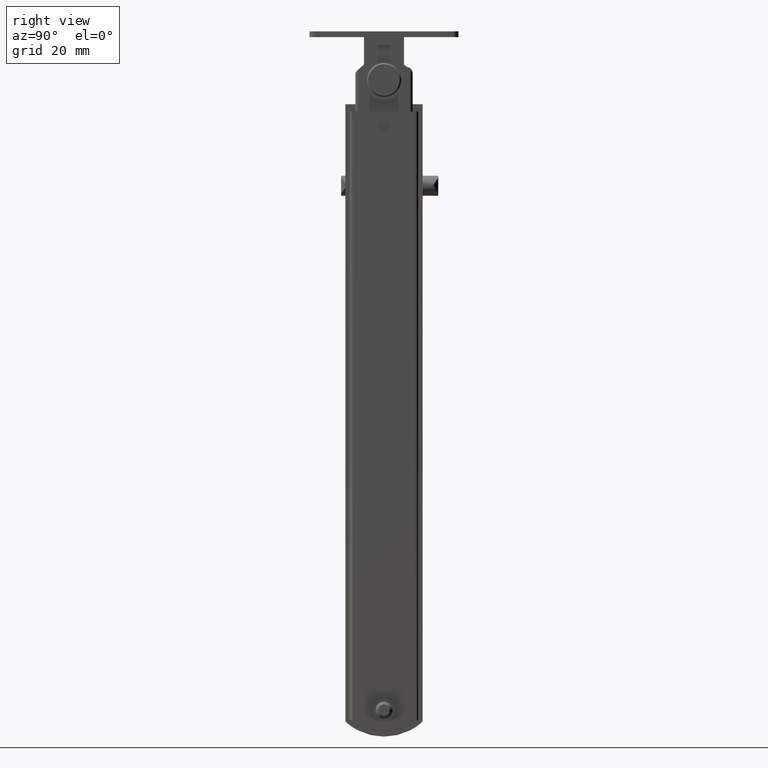
[diagram: clean part render]
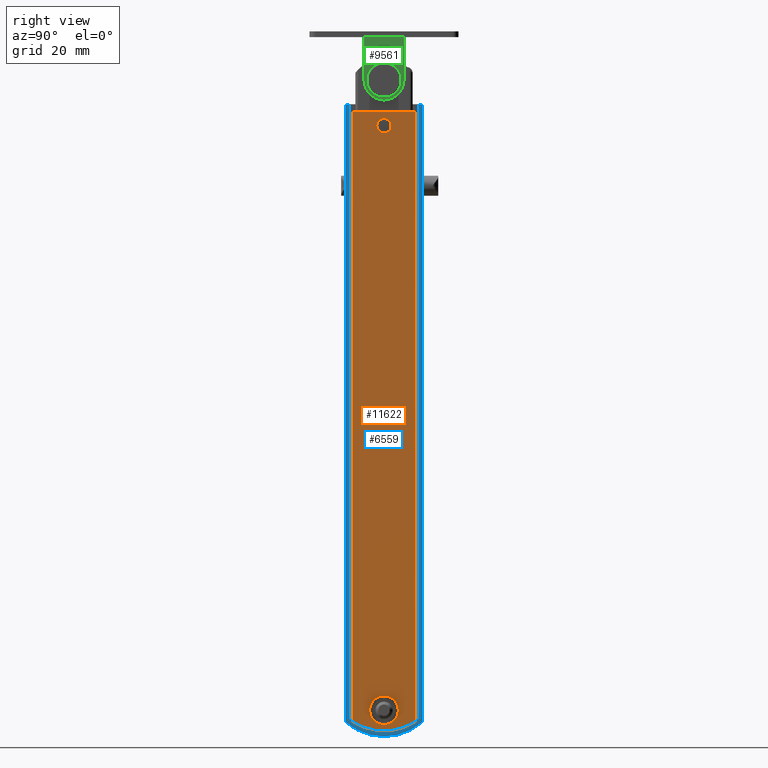
[diagram: same view with three faces highlighted in distinct colors, each labeled with its STEP entity id]
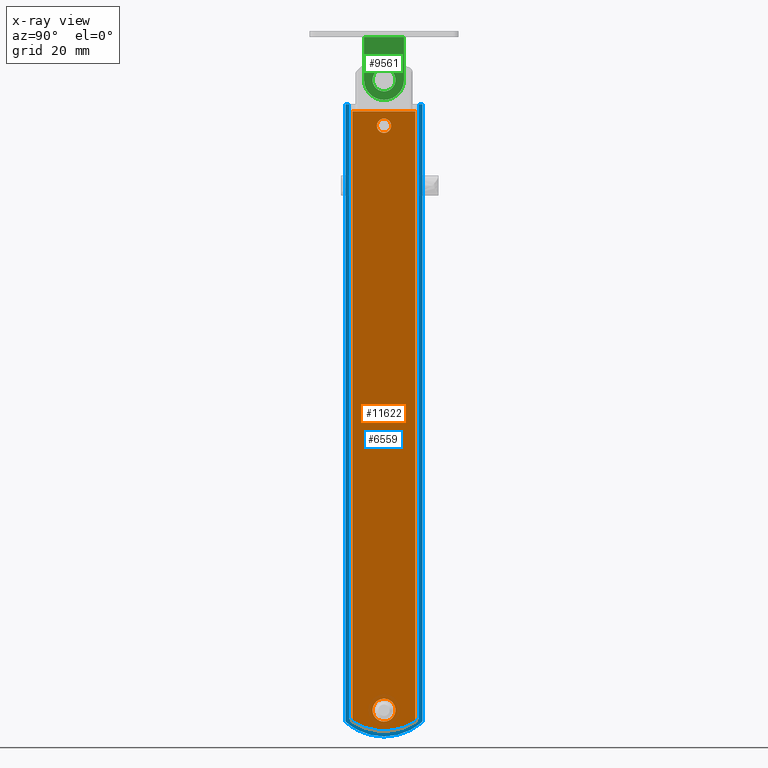
[diagram: x-ray of the same camera — body ghosted, the three highlighted faces saturated]
A machine part, right view with three faces highlighted in distinct colors.
The next image is the same camera in x-ray (body ghosted, the three faces saturated) — at least one of them is partly hidden behind the body in this view.
Their STEP definitions:

[orange] entity #11622 — the highlighted face is a freeform B-spline surface patch.
#10700=CARTESIAN_POINT('',(12.000000000000121,3.054223747431526,2.582968588759217));
#10701=VERTEX_POINT('',#10700);
#10707=CARTESIAN_POINT('',(12.000000000000121,0.0,4.0));
#10708=VERTEX_POINT('',#10707);
#10709=CARTESIAN_POINT('',(12.000000000000121,3.054223747431526,2.582968588759217));
#10710=CARTESIAN_POINT('',(12.000000000000110,2.797227095901918,2.887173241775408));
#10711=CARTESIAN_POINT('',(12.000000000000110,2.328973435319912,3.296936245620787));
#10712=CARTESIAN_POINT('',(12.000000000000130,1.302789720077379,3.842751822799811));
#10713=CARTESIAN_POINT('',(12.000000000000140,0.543154038361282,4.000695324337984));
#10714=CARTESIAN_POINT('',(12.000000000000121,0.0,4.0));
#10715=B_SPLINE_CURVE_WITH_KNOTS('',3,(#10709,#10710,#10711,#10712,#10713,#10714),.UNSPECIFIED.,.F.,.U.,(4,1,1,4),(0.000000164945613,1.194644746573973,1.846228094302886,3.475314135071406),.UNSPECIFIED.);
#10716=EDGE_CURVE('',#10701,#10708,#10715,.T.);
#10718=CARTESIAN_POINT('',(12.000000000000121,-3.999999999997143,-0.000004781312837));
#10719=VERTEX_POINT('',#10718);
#10720=CARTESIAN_POINT('',(12.000000000000121,0.0,4.0));
#10721=CARTESIAN_POINT('',(12.000000000000140,-0.490928007489591,4.000424968098961));
#10722=CARTESIAN_POINT('',(12.000000000000091,-1.341500686006327,3.841342912902102));
#10723=CARTESIAN_POINT('',(12.000000000000160,-2.353979826614640,3.283880235904535));
#10724=CARTESIAN_POINT('',(12.000000000000099,-3.174450999487624,2.522154175638686));
#10725=CARTESIAN_POINT('',(12.000000000000130,-3.823060001982060,1.439677722314948));
#10726=CARTESIAN_POINT('',(12.000000000000110,-4.000416719836876,0.490923298547355));
#10727=CARTESIAN_POINT('',(12.000000000000121,-3.999999999997143,-0.000004781312837));
#10728=B_SPLINE_CURVE_WITH_KNOTS('',3,(#10720,#10721,#10722,#10723,#10724,#10725,#10726,#10727),.UNSPECIFIED.,.F.,.U.,(4,1,1,1,1,4),(0.000000488394448,1.472661813960707,2.552670189058275,3.436135839027807,4.810690872210327,6.283345672275717),.UNSPECIFIED.);
#10729=EDGE_CURVE('',#10708,#10719,#10728,.T.);
#10731=CARTESIAN_POINT('',(12.000000000000121,0.0,-4.0));
#10732=VERTEX_POINT('',#10731);
#10733=CARTESIAN_POINT('',(12.000000000000121,-3.999999999997143,-0.000004781312837));
#10734=CARTESIAN_POINT('',(12.000000000000110,-4.000443056156374,-0.490941001910352));
#10735=CARTESIAN_POINT('',(12.000000000000121,-3.841291980970330,-1.341471361128876));
#10736=CARTESIAN_POINT('',(12.000000000000130,-3.204429647679850,-2.498859515820879));
#10737=CARTESIAN_POINT('',(12.000000000000121,-2.434847076821126,-3.231623177498820));
#10738=CARTESIAN_POINT('',(12.000000000000121,-1.341163055925452,-3.833325707366715));
#10739=CARTESIAN_POINT('',(12.000000000000149,-0.556514321468084,-4.000793763420298));
#10740=CARTESIAN_POINT('',(12.000000000000121,0.0,-4.0));
#10741=B_SPLINE_CURVE_WITH_KNOTS('',3,(#10733,#10734,#10735,#10736,#10737,#10738,#10739,#10740),.UNSPECIFIED.,.F.,.U.,(4,1,1,1,1,4),(0.000000494935948,1.472660555516129,2.552668006919940,3.927076196278049,4.614324032713522,6.283340282487296),.UNSPECIFIED.);
#10742=EDGE_CURVE('',#10719,#10732,#10741,.T.);
#10744=CARTESIAN_POINT('',(12.000000000000121,2.753417189138168,-2.901496895231373));
#10745=VERTEX_POINT('',#10744);
#10746=CARTESIAN_POINT('',(12.000000000000121,0.0,-4.0));
#10747=CARTESIAN_POINT('',(12.000000000000121,0.474568084769162,-4.000339622426640));
#10748=CARTESIAN_POINT('',(12.000000000000149,1.486556589358226,-3.817664364304001));
#10749=CARTESIAN_POINT('',(12.000000000000099,2.363704608982985,-3.272200122820786));
#10750=CARTESIAN_POINT('',(12.000000000000121,2.753417189138168,-2.901496895231373));
#10751=B_SPLINE_CURVE_WITH_KNOTS('',3,(#10746,#10747,#10748,#10749,#10750),.UNSPECIFIED.,.F.,.U.,(4,1,4),(0.000000113875855,1.423597997626385,3.036943254687630),.UNSPECIFIED.);
#10752=EDGE_CURVE('',#10732,#10745,#10751,.T.);
#10832=CARTESIAN_POINT('',(12.000000000000121,3.999999999997143,0.000004781312798));
#10833=VERTEX_POINT('',#10832);
#10834=CARTESIAN_POINT('',(12.000000000000121,2.753417189138168,-2.901496895231373));
#10835=CARTESIAN_POINT('',(12.000000000000171,2.974214308855560,-2.692033923996756));
#10836=CARTESIAN_POINT('',(12.000000000000080,3.411440147456695,-2.170255157625982));
#10837=CARTESIAN_POINT('',(12.000000000000080,3.880644353036686,-1.183470305521295));
#10838=CARTESIAN_POINT('',(12.000000000000130,4.000191153738079,-0.405804387646139));
#10839=CARTESIAN_POINT('',(12.000000000000121,3.999999999997143,0.000004781312798));
#10840=B_SPLINE_CURVE_WITH_KNOTS('',3,(#10834,#10835,#10836,#10837,#10838,#10839),.UNSPECIFIED.,.F.,.U.,(4,1,1,4),(0.000000158783134,0.913055590983658,2.029001722103571,3.246404090612490),.UNSPECIFIED.);
#10841=EDGE_CURVE('',#10745,#10833,#10840,.T.);
#10843=CARTESIAN_POINT('',(12.000000000000121,3.999999999997143,0.000004781312798));
#10844=CARTESIAN_POINT('',(12.000000000000130,4.000100734943780,0.380247081567482));
#10845=CARTESIAN_POINT('',(12.000000000000130,3.865638586917411,1.316244394184633));
#10846=CARTESIAN_POINT('',(12.000000000000110,3.413728334702718,2.158985232800402));
#10847=CARTESIAN_POINT('',(12.000000000000121,3.054223747431526,2.582968588759217));
#10848=B_SPLINE_CURVE_WITH_KNOTS('',3,(#10843,#10844,#10845,#10846,#10847),.UNSPECIFIED.,.F.,.U.,(4,1,4),(0.000000100386850,1.140768908659507,2.808030316062090),.UNSPECIFIED.);
#10849=EDGE_CURVE('',#10833,#10701,#10848,.T.);
#10893=CARTESIAN_POINT('',(12.000000000000121,-1.614354749777848,206.365234400114500));
#10894=VERTEX_POINT('',#10893);
#10900=CARTESIAN_POINT('',(12.000000000000121,-2.500000000000000,204.456345000000000));
#10901=VERTEX_POINT('',#10900);
#10902=CARTESIAN_POINT('',(12.000000000000121,-1.614354749777848,206.365234400114500));
#10903=CARTESIAN_POINT('',(12.000000000000140,-1.873792210486293,206.146341024666900));
#10904=CARTESIAN_POINT('',(12.000000000000091,-2.329368264540322,205.564374182527810));
#10905=CARTESIAN_POINT('',(12.000000000000140,-2.500636715097125,204.841071736535610));
#10906=CARTESIAN_POINT('',(12.000000000000121,-2.500000000000000,204.456345000000000));
#10907=B_SPLINE_CURVE_WITH_KNOTS('',3,(#10902,#10903,#10904,#10905,#10906),.UNSPECIFIED.,.F.,.U.,(4,1,4),(0.000000181425225,1.018194678514850,2.172071201003939),.UNSPECIFIED.);
#10908=EDGE_CURVE('',#10894,#10901,#10907,.T.);
#10910=CARTESIAN_POINT('',(12.000000000000121,0.0,201.956345000000000));
#10911=VERTEX_POINT('',#10910);
#10912=CARTESIAN_POINT('',(12.000000000000121,-2.500000000000000,204.456345000000000));
#10913=CARTESIAN_POINT('',(12.000000000000130,-2.500299696164800,204.149490425098410));
#10914=CARTESIAN_POINT('',(12.000000000000121,-2.416050506819139,203.699771766388410));
#10915=CARTESIAN_POINT('',(12.000000000000110,-2.109945608797723,203.072462023508390));
#10916=CARTESIAN_POINT('',(12.000000000000140,-1.768943286334725,202.656974082360700));
#10917=CARTESIAN_POINT('',(12.000000000000160,-1.278791712956244,202.284032989083810));
#10918=CARTESIAN_POINT('',(11.999999999999940,-0.715819672084915,202.026177594381610));
#10919=CARTESIAN_POINT('',(12.000000000000220,-0.245443876642096,201.956245405539110));
#10920=CARTESIAN_POINT('',(12.000000000000121,0.0,201.956345000000000));
#10921=B_SPLINE_CURVE_WITH_KNOTS('',3,(#10912,#10913,#10914,#10915,#10916,#10917,#10918,#10919,#10920),.UNSPECIFIED.,.F.,.U.,(4,1,1,1,1,1,4),(0.000000617949391,0.920408052182494,1.349944410758703,2.086207496016767,2.515747926762687,3.190773235271858,3.927089360947993),.UNSPECIFIED.);
#10922=EDGE_CURVE('',#10901,#10911,#10921,.T.);
#10924=CARTESIAN_POINT('',(12.000000000000121,2.500000000000000,204.456345000000000));
#10925=VERTEX_POINT('',#10924);
#10926=CARTESIAN_POINT('',(12.000000000000121,0.0,201.956345000000000));
#10927=CARTESIAN_POINT('',(12.000000000000110,0.368261763218683,201.955778685498500));
#10928=CARTESIAN_POINT('',(12.000000000000110,1.001819350485469,202.099059352608800));
#10929=CARTESIAN_POINT('',(12.000000000000140,1.719215865704624,202.591328999252910));
#10930=CARTESIAN_POINT('',(12.000000000000091,2.118915614935050,203.090961344275310));
#10931=CARTESIAN_POINT('',(12.000000000000160,2.416089084292320,203.699759148063410));
#10932=CARTESIAN_POINT('',(12.000000000000091,2.500261848616955,204.149498407010900));
#10933=CARTESIAN_POINT('',(12.000000000000121,2.500000000000000,204.456345000000000));
#10934=B_SPLINE_CURVE_WITH_KNOTS('',3,(#10926,#10927,#10928,#10929,#10930,#10931,#10932,#10933),.UNSPECIFIED.,.F.,.U.,(4,1,1,1,1,4),(0.000000617948949,1.104508061015558,1.902273739689414,2.577148151264387,3.006681187969455,3.927089360947799),.UNSPECIFIED.);
#10935=EDGE_CURVE('',#10911,#10925,#10934,.T.);
#10937=CARTESIAN_POINT('',(12.000000000000121,1.813435545161313,206.177231842167490));
#10938=VERTEX_POINT('',#10937);
#10939=CARTESIAN_POINT('',(12.000000000000121,2.500000000000000,204.456345000000000));
#10940=CARTESIAN_POINT('',(12.000000000000121,2.500400717762624,204.792500260332590));
#10941=CARTESIAN_POINT('',(12.000000000000121,2.370323327101627,205.424834281801110));
#10942=CARTESIAN_POINT('',(12.000000000000121,2.017764819955827,205.962221764752800));
#10943=CARTESIAN_POINT('',(12.000000000000121,1.813435545161313,206.177231842167490));
#10944=B_SPLINE_CURVE_WITH_KNOTS('',3,(#10939,#10940,#10941,#10942,#10943),.UNSPECIFIED.,.F.,.U.,(4,1,4),(0.000000148749935,1.008315055425817,1.898090624504165),.UNSPECIFIED.);
#10945=EDGE_CURVE('',#10925,#10938,#10944,.T.);
#11025=CARTESIAN_POINT('',(12.000000000000121,0.0,206.956345000000000));
#11026=VERTEX_POINT('',#11025);
#11027=CARTESIAN_POINT('',(12.000000000000121,1.813435545161313,206.177231842167490));
#11028=CARTESIAN_POINT('',(12.000000000000121,1.595375203691673,206.407423136562190));
#11029=CARTESIAN_POINT('',(12.000000000000121,1.035185263856093,206.807820979745090));
#11030=CARTESIAN_POINT('',(12.000000000000130,0.359362046168541,206.956873052276590));
#11031=CARTESIAN_POINT('',(12.000000000000121,0.0,206.956345000000000));
#11032=B_SPLINE_CURVE_WITH_KNOTS('',3,(#11027,#11028,#11029,#11030,#11031),.UNSPECIFIED.,.F.,.U.,(4,1,4),(0.000000164695610,0.951136653777378,2.028999063728803),.UNSPECIFIED.);
#11033=EDGE_CURVE('',#10938,#11026,#11032,.T.);
#11035=CARTESIAN_POINT('',(12.000000000000121,0.0,206.956345000000000));
#11036=CARTESIAN_POINT('',(12.000000000000099,-0.329114273810028,206.956681807406200));
#11037=CARTESIAN_POINT('',(12.000000000000160,-0.913778560692383,206.839062687326110));
#11038=CARTESIAN_POINT('',(12.000000000000121,-1.419000273031375,206.530595402741600));
#11039=CARTESIAN_POINT('',(12.000000000000121,-1.614354749777848,206.365234400114500));
#11040=B_SPLINE_CURVE_WITH_KNOTS('',3,(#11035,#11036,#11037,#11038,#11039),.UNSPECIFIED.,.F.,.U.,(4,1,4),(0.000000100614913,0.987186602288595,1.755021490855586),.UNSPECIFIED.);
#11041=EDGE_CURVE('',#11026,#10894,#11040,.T.);
#11183=CARTESIAN_POINT('',(12.000000000000121,11.0,-3.946945088489875));
#11184=VERTEX_POINT('',#11183);
#11216=CARTESIAN_POINT('',(12.000000000000121,-11.0,-3.946945088489875));
#11217=VERTEX_POINT('',#11216);
#11218=CARTESIAN_POINT('',(12.000000000000121,-11.0,-3.946945088489875));
#11219=CARTESIAN_POINT('',(12.000000000000080,-9.480355297349959,-4.948390568995393));
#11220=CARTESIAN_POINT('',(12.000000000000220,-6.386374003239906,-6.426212597776745));
#11221=CARTESIAN_POINT('',(12.000000000000080,-2.068044931017079,-7.261613497096345));
#11222=CARTESIAN_POINT('',(12.000000000000099,1.338116427170954,-7.261203528266003));
#11223=CARTESIAN_POINT('',(12.000000000000179,4.349174841307921,-6.847776383826534));
#11224=CARTESIAN_POINT('',(11.999999999999959,7.616807917601216,-5.868503722386145));
#11225=CARTESIAN_POINT('',(12.000000000000270,9.885487092169973,-4.681100307073877));
#11226=CARTESIAN_POINT('',(12.000000000000121,11.0,-3.946945088489875));
#11227=B_SPLINE_CURVE_WITH_KNOTS('',3,(#11218,#11219,#11220,#11221,#11222,#11223,#11224,#11225,#11226),.UNSPECIFIED.,.F.,.U.,(4,1,1,1,1,1,4),(0.000000132567529,5.459683794729269,10.191416567626330,13.103222335913239,15.651067559048540,19.290907354462082,23.294649878391240),.UNSPECIFIED.);
#11228=EDGE_CURVE('',#11217,#11184,#11227,.T.);
#11428=CARTESIAN_POINT('',(12.0,-11.0,209.456345000000000));
#11429=VERTEX_POINT('',#11428);
#11440=CARTESIAN_POINT('',(12.0,11.0,209.456345000000000));
#11441=VERTEX_POINT('',#11440);
#11442=CARTESIAN_POINT('',(12.0,11.0,209.456345000000000));
#11443=CARTESIAN_POINT('',(12.0,-11.0,209.456345000000000));
#11444=QUASI_UNIFORM_CURVE('',1,(#11442,#11443),.UNSPECIFIED.,.F.,.U.);
#11445=EDGE_CURVE('',#11441,#11429,#11444,.T.);
#11577=CARTESIAN_POINT('',(12.000000000000121,-11.0,-3.946945088489875));
#11578=CARTESIAN_POINT('',(12.0,-11.0,209.456345000000000));
#11579=QUASI_UNIFORM_CURVE('',1,(#11577,#11578),.UNSPECIFIED.,.F.,.U.);
#11580=EDGE_CURVE('',#11217,#11429,#11579,.T.);
#11591=CARTESIAN_POINT('',(12.0,12.098899957359730,-18.067875422654470));
#11592=CARTESIAN_POINT('',(12.0,-12.098900547445711,-18.067875422654470));
#11593=CARTESIAN_POINT('',(12.0,12.098899957359730,220.280518048981890));
#11594=CARTESIAN_POINT('',(12.0,-12.098900547445711,220.280518048981890));
#11595=B_SPLINE_SURFACE_WITH_KNOTS('',1,1,((#11591,#11593),(#11592,#11594)),.UNSPECIFIED.,.F.,.F.,.U.,(2,2),(2,2),(0.0,24.197800504805439),(0.0,238.348393471636400),.UNSPECIFIED.);
#11596=ORIENTED_EDGE('',*,*,#11228,.T.);
#11597=CARTESIAN_POINT('',(12.000000000000121,11.0,-3.946945088489875));
#11598=CARTESIAN_POINT('',(12.0,11.0,209.456345000000000));
#11599=QUASI_UNIFORM_CURVE('',1,(#11597,#11598),.UNSPECIFIED.,.F.,.U.);
#11600=EDGE_CURVE('',#11184,#11441,#11599,.T.);
#11601=ORIENTED_EDGE('',*,*,#11600,.T.);
#11602=ORIENTED_EDGE('',*,*,#11445,.T.);
#11603=ORIENTED_EDGE('',*,*,#11580,.F.);
#11604=EDGE_LOOP('',(#11596,#11601,#11602,#11603));
#11605=FACE_OUTER_BOUND('',#11604,.T.);
#11606=ORIENTED_EDGE('',*,*,#10922,.F.);
#11607=ORIENTED_EDGE('',*,*,#10908,.F.);
#11608=ORIENTED_EDGE('',*,*,#11041,.F.);
#11609=ORIENTED_EDGE('',*,*,#11033,.F.);
#11610=ORIENTED_EDGE('',*,*,#10945,.F.);
#11611=ORIENTED_EDGE('',*,*,#10935,.F.);
#11612=EDGE_LOOP('',(#11606,#11607,#11608,#11609,#11610,#11611));
#11613=FACE_BOUND('',#11612,.T.);
#11614=ORIENTED_EDGE('',*,*,#10729,.F.);
#11615=ORIENTED_EDGE('',*,*,#10716,.F.);
#11616=ORIENTED_EDGE('',*,*,#10849,.F.);
#11617=ORIENTED_EDGE('',*,*,#10841,.F.);
#11618=ORIENTED_EDGE('',*,*,#10752,.F.);
#11619=ORIENTED_EDGE('',*,*,#10742,.F.);
#11620=EDGE_LOOP('',(#11614,#11615,#11616,#11617,#11618,#11619));
#11621=FACE_BOUND('',#11620,.T.);
#11622=ADVANCED_FACE('',(#11605,#11613,#11621),#11595,.F.);

[blue] entity #6559 — the highlighted face is a freeform B-spline surface patch.
#5511=CARTESIAN_POINT('',(11.0,-13.500000000000000,-3.552740021253995));
#5512=VERTEX_POINT('',#5511);
#5513=CARTESIAN_POINT('',(11.000000000000121,-13.157894736842200,-4.305849917109476));
#5514=VERTEX_POINT('',#5513);
#5515=CARTESIAN_POINT('',(11.0,-13.500000000000000,-3.552740021253995));
#5516=CARTESIAN_POINT('',(11.000000000000020,-13.500097792026191,-3.677111893867539));
#5517=CARTESIAN_POINT('',(11.000000000000121,-13.446280073769330,-3.961319998446768));
#5518=CARTESIAN_POINT('',(11.000000000000110,-13.278574166652829,-4.200850612165257));
#5519=CARTESIAN_POINT('',(11.000000000000121,-13.157894736842200,-4.305849917109476));
#5520=B_SPLINE_CURVE_WITH_KNOTS('',3,(#5515,#5516,#5517,#5518,#5519),.UNSPECIFIED.,.F.,.U.,(4,1,4),(0.000000255747180,0.373151193881027,0.852877233541539),.UNSPECIFIED.);
#5521=EDGE_CURVE('',#5512,#5514,#5520,.T.);
#5806=CARTESIAN_POINT('',(11.000000000000121,13.157894736842140,-4.305849917109526));
#5807=VERTEX_POINT('',#5806);
#5808=CARTESIAN_POINT('',(11.0,13.500000000000000,-3.552740021254045));
#5809=VERTEX_POINT('',#5808);
#5810=CARTESIAN_POINT('',(11.000000000000121,13.157894736842140,-4.305849917109526));
#5811=CARTESIAN_POINT('',(11.000000000000121,13.251629310540910,-4.224097349312967));
#5812=CARTESIAN_POINT('',(11.000000000000110,13.430248773533600,-3.996598539181537));
#5813=CARTESIAN_POINT('',(11.000000000000041,13.500323019898600,-3.712695751793032));
#5814=CARTESIAN_POINT('',(11.0,13.500000000000000,-3.552740021254045));
#5815=B_SPLINE_CURVE_WITH_KNOTS('',3,(#5810,#5811,#5812,#5813,#5814),.UNSPECIFIED.,.F.,.U.,(4,1,4),(0.000000255747170,0.373151193881032,0.852877233541573),.UNSPECIFIED.);
#5816=EDGE_CURVE('',#5807,#5809,#5815,.T.);
#6398=CARTESIAN_POINT('',(11.0,-12.200011999999900,211.999985000000010));
#6399=VERTEX_POINT('',#6398);
#6400=CARTESIAN_POINT('',(11.000000000000121,-12.200011999999900,-3.091671030776525));
#6401=VERTEX_POINT('',#6400);
#6402=CARTESIAN_POINT('',(11.0,-12.200011999999900,211.999985000000010));
#6403=CARTESIAN_POINT('',(11.000000000000121,-12.200011999999900,-3.091671030776525));
#6404=QUASI_UNIFORM_CURVE('',1,(#6402,#6403),.UNSPECIFIED.,.F.,.U.);
#6405=EDGE_CURVE('',#6399,#6401,#6404,.T.);
#6434=CARTESIAN_POINT('',(11.000000000000121,12.199982000000100,-3.091694125122900));
#6435=VERTEX_POINT('',#6434);
#6436=CARTESIAN_POINT('',(11.000000000000121,12.199982000000100,211.999985000000010));
#6437=VERTEX_POINT('',#6436);
#6438=CARTESIAN_POINT('',(11.000000000000121,12.199982000000100,-3.091694125122900));
#6439=CARTESIAN_POINT('',(11.000000000000121,12.199982000000100,211.999985000000010));
#6440=QUASI_UNIFORM_CURVE('',1,(#6438,#6439),.UNSPECIFIED.,.F.,.U.);
#6441=EDGE_CURVE('',#6435,#6437,#6440,.T.);
#6479=CARTESIAN_POINT('',(11.000000000000121,-12.200011999999900,-3.091671030776525));
#6480=CARTESIAN_POINT('',(11.000000000000160,-10.792366903748510,-4.176053259923665));
#6481=CARTESIAN_POINT('',(11.000000000000110,-8.163429381294936,-5.689870757424094));
#6482=CARTESIAN_POINT('',(11.000000000000091,-4.160509649671401,-6.916127240030898));
#6483=CARTESIAN_POINT('',(11.000000000000171,-0.345597692991332,-7.368009431767862));
#6484=CARTESIAN_POINT('',(11.000000000000041,3.492249825616880,-7.072432347194206));
#6485=CARTESIAN_POINT('',(11.000000000000201,7.915578099958315,-5.815874696998382));
#6486=CARTESIAN_POINT('',(11.000000000000069,10.684124429532410,-4.259639519956491));
#6487=CARTESIAN_POINT('',(11.000000000000121,12.199982000000100,-3.091694125122900));
#6488=B_SPLINE_CURVE_WITH_KNOTS('',3,(#6479,#6480,#6481,#6482,#6483,#6484,#6485,#6486,#6487),.UNSPECIFIED.,.F.,.U.,(4,1,1,1,1,1,4),(0.000000169549853,5.330498117942291,9.020882224034459,12.506242971666969,16.811581504330210,20.501986241371380,26.242530960692040),.UNSPECIFIED.);
#6489=EDGE_CURVE('',#6401,#6435,#6488,.T.);
#6509=CARTESIAN_POINT('',(11.0,14.848649947668759,223.051100287148610));
#6510=CARTESIAN_POINT('',(11.0,-14.848650671865190,223.051100287148610));
#6511=CARTESIAN_POINT('',(11.0,14.848649947668759,-20.294694098474839));
#6512=CARTESIAN_POINT('',(11.0,-14.848650671865190,-20.294694098474839));
#6513=B_SPLINE_SURFACE_WITH_KNOTS('',1,1,((#6509,#6511),(#6510,#6512)),.UNSPECIFIED.,.F.,.F.,.U.,(2,2),(2,2),(0.0,29.697300619533959),(0.0,243.345794385623410),.UNSPECIFIED.);
#6514=CARTESIAN_POINT('',(11.000000000000121,-13.500000000000000,211.999985000000010));
#6515=VERTEX_POINT('',#6514);
#6516=CARTESIAN_POINT('',(11.0,-13.500000000000000,-3.552740021253995));
#6517=CARTESIAN_POINT('',(11.000000000000121,-13.500000000000000,211.999985000000010));
#6518=QUASI_UNIFORM_CURVE('',1,(#6516,#6517),.UNSPECIFIED.,.F.,.U.);
#6519=EDGE_CURVE('',#5512,#6515,#6518,.T.);
#6520=ORIENTED_EDGE('',*,*,#6519,.F.);
#6521=ORIENTED_EDGE('',*,*,#5521,.T.);
#6522=CARTESIAN_POINT('',(11.000000000000121,13.157894736842140,-4.305849917109526));
#6523=CARTESIAN_POINT('',(11.000000000000121,12.200430307308951,-5.142483929019331));
#6524=CARTESIAN_POINT('',(11.000000000000121,10.430295552721059,-6.412957468060539));
#6525=CARTESIAN_POINT('',(11.000000000000130,7.676243699577665,-7.777397093276835));
#6526=CARTESIAN_POINT('',(11.000000000000099,4.906026416438772,-8.711921393728556));
#6527=CARTESIAN_POINT('',(11.000000000000179,1.579346763890030,-9.296465967029713));
#6528=CARTESIAN_POINT('',(11.000000000000069,-2.254354085118291,-9.253491212405688));
#6529=CARTESIAN_POINT('',(11.000000000000171,-6.222039119462917,-8.394756689999834));
#6530=CARTESIAN_POINT('',(10.999999999999931,-9.936715267212525,-6.757451393566690));
#6531=CARTESIAN_POINT('',(11.000000000000350,-12.144107988673699,-5.191690539258070));
#6532=CARTESIAN_POINT('',(11.000000000000121,-13.157894736842200,-4.305849917109476));
#6533=B_SPLINE_CURVE_WITH_KNOTS('',3,(#6522,#6523,#6524,#6525,#6526,#6527,#6528,#6529,#6530,#6531,#6532),.UNSPECIFIED.,.F.,.U.,(4,1,1,1,1,1,1,1,4),(0.000000193022686,3.814453291165041,6.507081543909557,9.199707909342813,12.565451030668310,16.604230479125231,20.643179127831541,24.682107557488450,28.720946994341919),.UNSPECIFIED.);
#6534=EDGE_CURVE('',#5807,#5514,#6533,.T.);
#6535=ORIENTED_EDGE('',*,*,#6534,.F.);
#6536=ORIENTED_EDGE('',*,*,#5816,.T.);
#6537=CARTESIAN_POINT('',(11.000000000000121,13.500000000000000,211.999985000000010));
#6538=VERTEX_POINT('',#6537);
#6539=CARTESIAN_POINT('',(11.000000000000121,13.500000000000000,211.999985000000010));
#6540=CARTESIAN_POINT('',(11.0,13.500000000000000,-3.552740021254045));
#6541=QUASI_UNIFORM_CURVE('',1,(#6539,#6540),.UNSPECIFIED.,.F.,.U.);
#6542=EDGE_CURVE('',#6538,#5809,#6541,.T.);
#6543=ORIENTED_EDGE('',*,*,#6542,.F.);
#6544=CARTESIAN_POINT('',(11.000000000000121,12.199982000000100,211.999985000000010));
#6545=CARTESIAN_POINT('',(11.000000000000121,13.500000000000000,211.999985000000010));
#6546=QUASI_UNIFORM_CURVE('',1,(#6544,#6545),.UNSPECIFIED.,.F.,.U.);
#6547=EDGE_CURVE('',#6437,#6538,#6546,.T.);
#6548=ORIENTED_EDGE('',*,*,#6547,.F.);
#6549=ORIENTED_EDGE('',*,*,#6441,.F.);
#6550=ORIENTED_EDGE('',*,*,#6489,.F.);
#6551=ORIENTED_EDGE('',*,*,#6405,.F.);
#6552=CARTESIAN_POINT('',(11.000000000000121,-13.500000000000000,211.999985000000010));
#6553=CARTESIAN_POINT('',(11.0,-12.200011999999900,211.999985000000010));
#6554=QUASI_UNIFORM_CURVE('',1,(#6552,#6553),.UNSPECIFIED.,.F.,.U.);
#6555=EDGE_CURVE('',#6515,#6399,#6554,.T.);
#6556=ORIENTED_EDGE('',*,*,#6555,.F.);
#6557=EDGE_LOOP('',(#6520,#6521,#6535,#6536,#6543,#6548,#6549,#6550,#6551,#6556));
#6558=FACE_OUTER_BOUND('',#6557,.T.);
#6559=ADVANCED_FACE('',(#6558),#6513,.T.);

[green] entity #9561 — the highlighted face is a freeform B-spline surface patch.
#8449=CARTESIAN_POINT('',(12.500000000000000,4.263256E-014,216.499985000000010));
#8450=VERTEX_POINT('',#8449);
#8451=CARTESIAN_POINT('',(12.499999999867750,-2.866602950803972,217.710257779760300));
#8452=VERTEX_POINT('',#8451);
#8453=CARTESIAN_POINT('',(12.500000000000000,4.263256E-014,216.499985000000010));
#8454=CARTESIAN_POINT('',(12.499999999980050,-0.432827709507060,216.499725734135890));
#8455=CARTESIAN_POINT('',(12.499999999946230,-1.165056351226065,216.620062870602790));
#8456=CARTESIAN_POINT('',(12.499999999901460,-2.136377213589299,217.073794558761700));
#8457=CARTESIAN_POINT('',(12.499999999878440,-2.634470901436978,217.471613591343810));
#8458=CARTESIAN_POINT('',(12.499999999867750,-2.866602950803972,217.710257779760300));
#8459=B_SPLINE_CURVE_WITH_KNOTS('',3,(#8453,#8454,#8455,#8456,#8457,#8458),.UNSPECIFIED.,.F.,.U.,(4,1,1,4),(0.000000146786438,1.298415215863936,2.197260945354799,3.196036213459804),.UNSPECIFIED.);
#8460=EDGE_CURVE('',#8450,#8452,#8459,.T.);
#8462=CARTESIAN_POINT('',(12.500000000000000,3.999999999997185,220.499980218687200));
#8463=VERTEX_POINT('',#8462);
#8464=CARTESIAN_POINT('',(12.500000000000000,3.999999999997185,220.499980218687200));
#8465=CARTESIAN_POINT('',(12.500000000000011,4.000625161851998,219.943559226042710));
#8466=CARTESIAN_POINT('',(12.500000000000020,3.798761605473938,218.995066521878410));
#8467=CARTESIAN_POINT('',(12.499999999999970,3.125999218412407,217.933113837489000));
#8468=CARTESIAN_POINT('',(12.500000000000041,2.426347919293701,217.283377016261710));
#8469=CARTESIAN_POINT('',(12.499999999999989,1.439279521815492,216.691455623721400));
#8470=CARTESIAN_POINT('',(12.500000000000000,0.589261967587173,216.499024590228690));
#8471=CARTESIAN_POINT('',(12.500000000000000,4.263256E-014,216.499985000000010));
#8472=B_SPLINE_CURVE_WITH_KNOTS('',3,(#8464,#8465,#8466,#8467,#8468,#8469,#8470,#8471),.UNSPECIFIED.,.F.,.U.,(4,1,1,1,1,4),(0.000000494907352,1.669021496656500,2.847211303064096,3.730667726733395,4.516137235136488,6.283340282487501),.UNSPECIFIED.);
#8473=EDGE_CURVE('',#8463,#8450,#8472,.T.);
#8475=CARTESIAN_POINT('',(12.500000000000000,4.263256E-014,224.499985000000010));
#8476=VERTEX_POINT('',#8475);
#8477=CARTESIAN_POINT('',(12.500000000000000,4.263256E-014,224.499985000000010));
#8478=CARTESIAN_POINT('',(12.500000000000000,0.425451166074565,224.500205203794000));
#8479=CARTESIAN_POINT('',(12.500000000000000,1.112510913380812,224.389264443769890));
#8480=CARTESIAN_POINT('',(12.500000000000011,2.044427513998422,223.976097125394600));
#8481=CARTESIAN_POINT('',(12.500000000000020,2.918707173884032,223.328191088580100));
#8482=CARTESIAN_POINT('',(12.499999999999950,3.757039686379635,222.168396040629800));
#8483=CARTESIAN_POINT('',(12.500000000000030,4.000881587121273,221.089140550290010));
#8484=CARTESIAN_POINT('',(12.500000000000000,3.999999999997185,220.499980218687200));
#8485=B_SPLINE_CURVE_WITH_KNOTS('',3,(#8477,#8478,#8479,#8480,#8481,#8482,#8483,#8484),.UNSPECIFIED.,.F.,.U.,(4,1,1,1,1,4),(0.000000488382850,1.276288244605668,2.061757085923953,3.043560162477350,4.516141112756670,6.283345672275696),.UNSPECIFIED.);
#8486=EDGE_CURVE('',#8476,#8463,#8485,.T.);
#8488=CARTESIAN_POINT('',(12.500000000130090,-2.949110140296961,223.202346727569390));
#8489=VERTEX_POINT('',#8488);
#8490=CARTESIAN_POINT('',(12.500000000130090,-2.949110140296961,223.202346727569390));
#8491=CARTESIAN_POINT('',(12.500000000112610,-2.552877370495812,223.635901859439510));
#8492=CARTESIAN_POINT('',(12.500000000071610,-1.623233305514354,224.282211921657310));
#8493=CARTESIAN_POINT('',(12.500000000022860,-0.518211612491929,224.500465735556790));
#8494=CARTESIAN_POINT('',(12.500000000000000,4.263256E-014,224.499985000000010));
#8495=B_SPLINE_CURVE_WITH_KNOTS('',3,(#8490,#8491,#8492,#8493,#8494),.UNSPECIFIED.,.F.,.U.,(4,1,4),(0.000000130741887,1.761712815240095,3.316218661107687),.UNSPECIFIED.);
#8496=EDGE_CURVE('',#8489,#8476,#8495,.T.);
#8573=CARTESIAN_POINT('',(12.500000000000000,-3.999999999997100,220.499989781312790));
#8574=VERTEX_POINT('',#8573);
#8575=CARTESIAN_POINT('',(12.499999999867750,-2.866602950803972,217.710257779760300));
#8576=CARTESIAN_POINT('',(12.499999999884150,-3.203331502031857,218.055747097963690));
#8577=CARTESIAN_POINT('',(12.499999999925301,-3.785465702355984,218.924730161063710));
#8578=CARTESIAN_POINT('',(12.499999999974071,-4.000680316912341,219.953198687171690));
#8579=CARTESIAN_POINT('',(12.500000000000000,-3.999999999997100,220.499989781312790));
#8580=B_SPLINE_CURVE_WITH_KNOTS('',3,(#8575,#8576,#8577,#8578,#8579),.UNSPECIFIED.,.F.,.U.,(4,1,4),(0.000000123687301,1.447210265126991,3.087310747135155),.UNSPECIFIED.);
#8581=EDGE_CURVE('',#8452,#8574,#8580,.T.);
#8605=CARTESIAN_POINT('',(12.500000000000000,-3.999999999997100,220.499989781312790));
#8606=CARTESIAN_POINT('',(12.500000000019330,-4.000127790159231,220.901772242830110));
#8607=CARTESIAN_POINT('',(12.500000000066970,-3.849860619017639,221.890799635896400));
#8608=CARTESIAN_POINT('',(12.500000000109260,-3.346619557884534,222.769865108105390));
#8609=CARTESIAN_POINT('',(12.500000000130090,-2.949110140296961,223.202346727569390));
#8610=B_SPLINE_CURVE_WITH_KNOTS('',3,(#8605,#8606,#8607,#8608,#8609),.UNSPECIFIED.,.F.,.U.,(4,1,4),(0.000000132107207,1.205401143745067,2.967121927471858),.UNSPECIFIED.);
#8611=EDGE_CURVE('',#8574,#8489,#8610,.T.);
#8722=CARTESIAN_POINT('',(12.500000000000000,7.0,220.499985000000010));
#8723=VERTEX_POINT('',#8722);
#8729=CARTESIAN_POINT('',(12.500000000000000,0.000003690671740,213.499985000001000));
#8730=VERTEX_POINT('',#8729);
#8731=CARTESIAN_POINT('',(12.500000000000000,0.000003690671740,213.499985000001000));
#8732=CARTESIAN_POINT('',(12.500000000000011,0.458136239640153,213.499937271114110));
#8733=CARTESIAN_POINT('',(12.499999999999980,1.431711192256751,213.595851068074810));
#8734=CARTESIAN_POINT('',(12.500000000000011,2.695050865077420,213.996067275102490));
#8735=CARTESIAN_POINT('',(12.500000000000000,3.859818482021656,214.618757678411100));
#8736=CARTESIAN_POINT('',(12.500000000000000,5.084999932085029,215.574364965191510));
#8737=CARTESIAN_POINT('',(12.500000000000000,6.173700530426911,217.005234096946000));
#8738=CARTESIAN_POINT('',(12.500000000000000,6.858650388676767,218.781999048212410));
#8739=CARTESIAN_POINT('',(12.500000000000000,7.000140896406424,219.927297627869390));
#8740=CARTESIAN_POINT('',(12.500000000000000,7.0,220.499985000000010));
#8741=B_SPLINE_CURVE_WITH_KNOTS('',3,(#8731,#8732,#8733,#8734,#8735,#8736,#8737,#8738,#8739,#8740),.UNSPECIFIED.,.F.,.U.,(4,1,1,1,1,1,1,4),(0.000000105972427,1.374437986452250,2.920780054273200,3.951663375805312,5.326116144717711,7.559619583129801,9.277779771028463,10.995848130166779),.UNSPECIFIED.);
#8742=EDGE_CURVE('',#8730,#8723,#8741,.T.);
#8744=CARTESIAN_POINT('',(12.500000000000000,-7.0,220.499985000000010));
#8745=VERTEX_POINT('',#8744);
#8746=CARTESIAN_POINT('',(12.500000000000000,-7.0,220.499985000000010));
#8747=CARTESIAN_POINT('',(12.500000000000011,-7.000050764572707,220.041850798192400));
#8748=CARTESIAN_POINT('',(12.499999999999980,-6.904116443671717,219.068286802638000));
#8749=CARTESIAN_POINT('',(12.500000000000020,-6.434386337770331,217.585188216941790));
#8750=CARTESIAN_POINT('',(12.499999999999970,-5.544507230501933,216.100348679556110));
#8751=CARTESIAN_POINT('',(12.500000000000011,-4.344947447402266,214.929950331022890));
#8752=CARTESIAN_POINT('',(12.500000000000000,-2.913474464748334,214.072036879945810));
#8753=CARTESIAN_POINT('',(12.500000000000011,-1.488990643111804,213.601434236389310));
#8754=CARTESIAN_POINT('',(12.500000000000000,-0.458130584054551,213.499950606957100));
#8755=CARTESIAN_POINT('',(12.500000000000000,0.000003690671740,213.499985000001000));
#8756=B_SPLINE_CURVE_WITH_KNOTS('',3,(#8746,#8747,#8748,#8749,#8750,#8751,#8752,#8753,#8754,#8755),.UNSPECIFIED.,.F.,.U.,(4,1,1,1,1,1,1,4),(0.000000100907833,1.374438501759338,2.920781155175839,4.638894968622141,6.528758670861564,7.903254508935679,9.621404503348581,10.995852290517790),.UNSPECIFIED.);
#8757=EDGE_CURVE('',#8745,#8730,#8756,.T.);
#9199=CARTESIAN_POINT('',(12.500000000000000,7.0,235.499985000000010));
#9200=VERTEX_POINT('',#9199);
#9234=CARTESIAN_POINT('',(12.500000000000000,7.0,220.499985000000010));
#9235=CARTESIAN_POINT('',(12.500000000000000,7.0,235.499985000000010));
#9236=QUASI_UNIFORM_CURVE('',1,(#9234,#9235),.UNSPECIFIED.,.F.,.U.);
#9237=EDGE_CURVE('',#8723,#9200,#9236,.T.);
#9248=CARTESIAN_POINT('',(12.500000000000000,-7.0,235.499985000000010));
#9249=VERTEX_POINT('',#9248);
#9262=CARTESIAN_POINT('',(12.500000000000000,-7.0,220.499985000000010));
#9263=CARTESIAN_POINT('',(12.500000000000000,-7.0,235.499985000000010));
#9264=QUASI_UNIFORM_CURVE('',1,(#9262,#9263),.UNSPECIFIED.,.F.,.U.);
#9265=EDGE_CURVE('',#8745,#9249,#9264,.T.);
#9502=CARTESIAN_POINT('',(12.500000000000000,-7.0,235.499985000000010));
#9503=CARTESIAN_POINT('',(12.500000000000000,7.0,235.499985000000010));
#9504=QUASI_UNIFORM_CURVE('',1,(#9502,#9503),.UNSPECIFIED.,.F.,.U.);
#9505=EDGE_CURVE('',#9249,#9200,#9504,.T.);
#9541=CARTESIAN_POINT('',(12.500000000000000,-7.699299972865284,236.598884750839400));
#9542=CARTESIAN_POINT('',(12.500000000000000,-7.699299972865284,212.401084462380310));
#9543=CARTESIAN_POINT('',(12.500000000000000,7.699300348374545,236.598884750839400));
#9544=CARTESIAN_POINT('',(12.500000000000000,7.699300348374545,212.401084462380310));
#9545=B_SPLINE_SURFACE_WITH_KNOTS('',1,1,((#9541,#9543),(#9542,#9544)),.UNSPECIFIED.,.F.,.F.,.U.,(2,2),(2,2),(0.0,24.197800288459181),(0.0,15.398600321239829),.UNSPECIFIED.);
#9546=ORIENTED_EDGE('',*,*,#8757,.T.);
#9547=ORIENTED_EDGE('',*,*,#8742,.T.);
#9548=ORIENTED_EDGE('',*,*,#9237,.T.);
#9549=ORIENTED_EDGE('',*,*,#9505,.F.);
#9550=ORIENTED_EDGE('',*,*,#9265,.F.);
#9551=EDGE_LOOP('',(#9546,#9547,#9548,#9549,#9550));
#9552=FACE_OUTER_BOUND('',#9551,.T.);
#9553=ORIENTED_EDGE('',*,*,#8486,.T.);
#9554=ORIENTED_EDGE('',*,*,#8473,.T.);
#9555=ORIENTED_EDGE('',*,*,#8460,.T.);
#9556=ORIENTED_EDGE('',*,*,#8581,.T.);
#9557=ORIENTED_EDGE('',*,*,#8611,.T.);
#9558=ORIENTED_EDGE('',*,*,#8496,.T.);
#9559=EDGE_LOOP('',(#9553,#9554,#9555,#9556,#9557,#9558));
#9560=FACE_BOUND('',#9559,.T.);
#9561=ADVANCED_FACE('',(#9552,#9560),#9545,.T.);